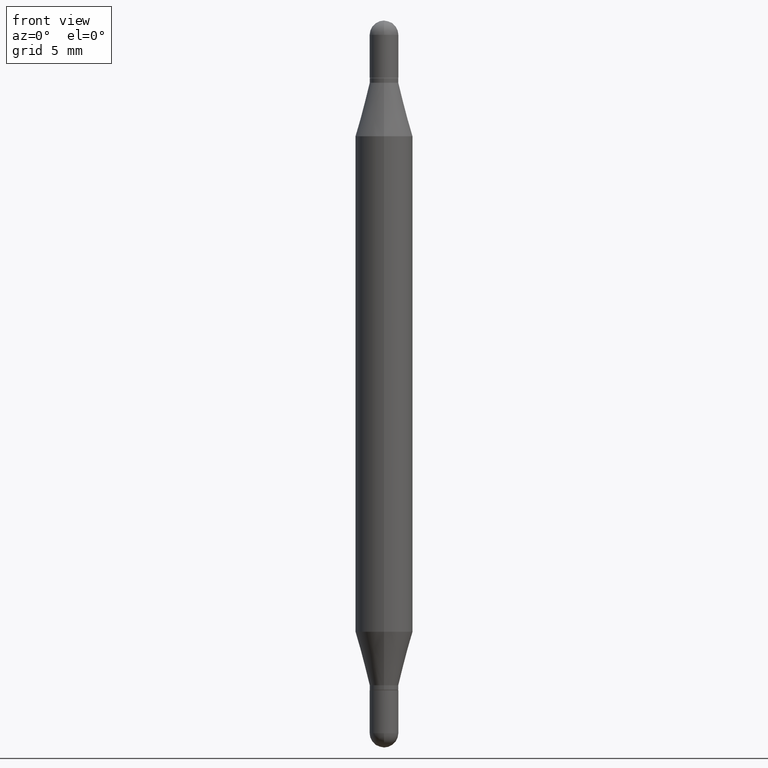
[diagram: clean part render]
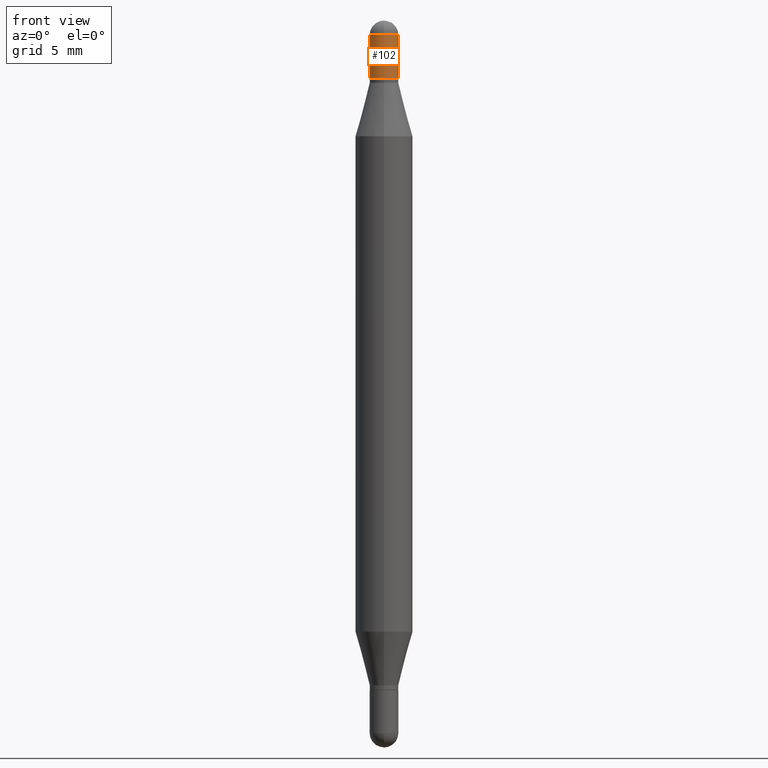
[diagram: same view with one face highlighted and labeled with its STEP entity id]
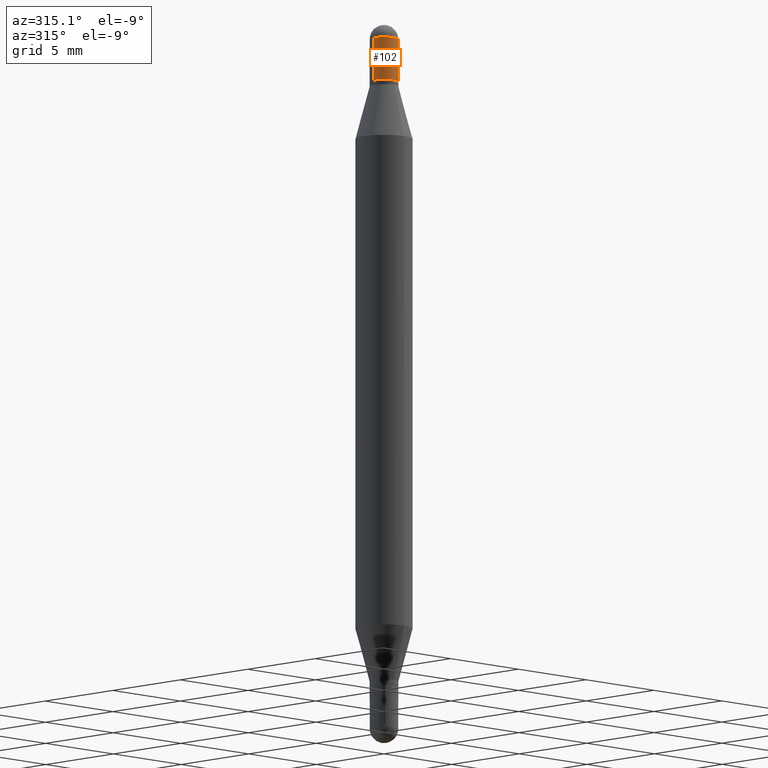
[diagram: same view with one face highlighted and labeled with its STEP entity id]
A machine part, front view. The second image highlights one B-rep face of the part: STEP entity #102.
A second angle (auxiliary view) of the same face is appended — the face is thin or edge-on in the first view.
In plain terms, the highlighted cylindrical surface (edge-blend (fillet) strip) has radius 0.7506 mm, axis along (-0, -0, -1).
Its self-contained STEP definition (entity closure, byte-faithful):
#16 = CARTESIAN_POINT ( 'NONE',  ( 0.02954999999999999988, -5.421074764670008716E-15, -1.496099999999999985 ) ) ;
#19 = VERTEX_POINT ( 'NONE', #920 ) ;
#36 = VERTEX_POINT ( 'NONE', #638 ) ;
#43 = CYLINDRICAL_SURFACE ( 'NONE', #1113, 0.02954999999999999988 ) ;
#101 = ORIENTED_EDGE ( 'NONE', *, *, #708, .F. ) ;
#102 = ADVANCED_FACE ( 'NONE', ( #469 ), #43, .T. ) ;
#127 = AXIS2_PLACEMENT_3D ( 'NONE', #878, #348, #981 ) ;
#243 = VERTEX_POINT ( 'NONE', #688 ) ;
#263 = VECTOR ( 'NONE', #705, 39.37007874015748143 ) ;
#277 = LINE ( 'NONE', #16, #263 ) ;
#334 = ORIENTED_EDGE ( 'NONE', *, *, #415, .T. ) ;
#340 = EDGE_CURVE ( 'NONE', #846, #897, #1024, .T. ) ;
#348 = DIRECTION ( 'NONE',  ( 2.445468806185136597E-29, 3.479614466977828254E-15, 1.000000000000000000 ) ) ;
#380 = CARTESIAN_POINT ( 'NONE',  ( 0.02954999999999999988, -4.721060986491175152E-16, -0.02954999999999996171 ) ) ;
#382 = ORIENTED_EDGE ( 'NONE', *, *, #815, .F. ) ;
#387 = DIRECTION ( 'NONE',  ( -2.445468806185136597E-29, -3.479614466977828254E-15, -1.000000000000000000 ) ) ;
#390 = AXIS2_PLACEMENT_3D ( 'NONE', #488, #775, #761 ) ;
#415 = EDGE_CURVE ( 'NONE', #36, #19, #738, .T. ) ;
#469 = FACE_OUTER_BOUND ( 'NONE', #695, .T. ) ;
#488 = CARTESIAN_POINT ( 'NONE',  ( 3.369856014923117948E-29, -4.198194820489331117E-16, -0.1181000000000000383 ) ) ;
#507 = DIRECTION ( 'NONE',  ( 1.000000000000000000, -6.982962677686265922E-15, 0.000000000000000000 ) ) ;
#568 = DIRECTION ( 'NONE',  ( -2.445468806185136877E-29, -3.479614466977828648E-15, -1.000000000000000000 ) ) ;
#597 = ORIENTED_EDGE ( 'NONE', *, *, #700, .T. ) ;
#638 = CARTESIAN_POINT ( 'NONE',  ( -0.02954999999999999988, -6.303183568933963151E-17, -0.02954999999999996171 ) ) ;
#688 = CARTESIAN_POINT ( 'NONE',  ( 0.02954999999999999988, -6.261660291745622784E-16, -0.1181000000000000383 ) ) ;
#695 = EDGE_LOOP ( 'NONE', ( #101, #334, #597, #382, #821 ) ) ;
#700 = EDGE_CURVE ( 'NONE', #19, #243, #807, .T. ) ;
#705 = DIRECTION ( 'NONE',  ( -2.445468806185136877E-29, -3.479614466977828648E-15, -1.000000000000000000 ) ) ;
#708 = EDGE_CURVE ( 'NONE', #36, #846, #860, .T. ) ;
#721 = CARTESIAN_POINT ( 'NONE',  ( -2.063465471255932489E-16, -0.02955000000000010743, -0.02954999999999986110 ) ) ;
#732 = DIRECTION ( 'NONE',  ( 1.000000000000000000, -6.982962677686261977E-15, 0.000000000000000000 ) ) ;
#738 = LINE ( 'NONE', #818, #1009 ) ;
#761 = DIRECTION ( 'NONE',  ( 1.000000000000000000, -6.982962677686265922E-15, 0.000000000000000000 ) ) ;
#775 = DIRECTION ( 'NONE',  ( 2.445468806185136597E-29, 3.479614466977828254E-15, 1.000000000000000000 ) ) ;
#807 = CIRCLE ( 'NONE', #390, 0.02954999999999999988 ) ;
#815 = EDGE_CURVE ( 'NONE', #897, #243, #277, .T. ) ;
#818 = CARTESIAN_POINT ( 'NONE',  ( -0.02954999999999999988, -5.012000501710230820E-15, -1.496099999999999985 ) ) ;
#821 = ORIENTED_EDGE ( 'NONE', *, *, #340, .F. ) ;
#846 = VERTEX_POINT ( 'NONE', #721 ) ;
#860 = CIRCLE ( 'NONE', #1080, 0.02954999999999999988 ) ;
#878 = CARTESIAN_POINT ( 'NONE',  ( 3.586402277710812283E-29, -1.116996209980459766E-16, -0.02954999999999996171 ) ) ;
#897 = VERTEX_POINT ( 'NONE', #380 ) ;
#909 = CARTESIAN_POINT ( 'NONE',  ( 0.000000000000000000, -5.214728217544379106E-15, -1.496099999999999985 ) ) ;
#920 = CARTESIAN_POINT ( 'NONE',  ( -0.02954999999999999988, -6.303183568933981640E-17, -0.1181000000000000383 ) ) ;
#981 = DIRECTION ( 'NONE',  ( 1.000000000000000000, -6.982962677686265922E-15, 0.000000000000000000 ) ) ;
#1009 = VECTOR ( 'NONE', #568, 39.37007874015748143 ) ;
#1023 = DIRECTION ( 'NONE',  ( 2.445468806185136597E-29, 3.479614466977828254E-15, 1.000000000000000000 ) ) ;
#1024 = CIRCLE ( 'NONE', #127, 0.02954999999999999988 ) ;
#1036 = CARTESIAN_POINT ( 'NONE',  ( 3.586402277710812283E-29, -1.116996209980459766E-16, -0.02954999999999996171 ) ) ;
#1080 = AXIS2_PLACEMENT_3D ( 'NONE', #1036, #1023, #507 ) ;
#1113 = AXIS2_PLACEMENT_3D ( 'NONE', #909, #387, #732 ) ;